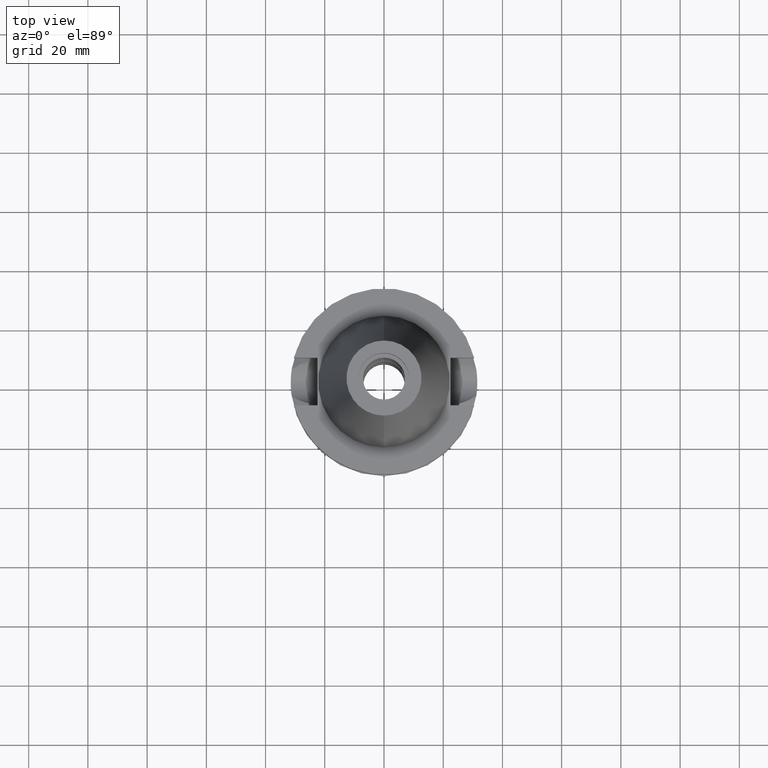
[diagram: clean part render]
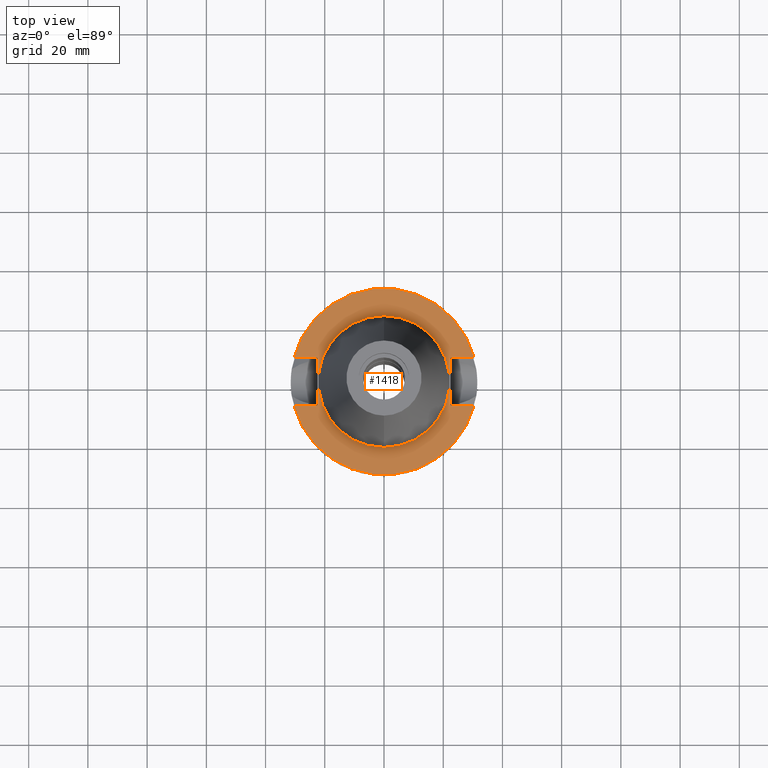
[diagram: same view with one face highlighted and labeled with its STEP entity id]
A machine part, top view. The second image highlights one B-rep face of the part: STEP entity #1418.
In plain terms, the highlighted planar face has unit normal (0, 0, -1).
Its self-contained STEP definition (entity closure, byte-faithful):
#2 = CARTESIAN_POINT ( 'NONE',  ( 22.50000000000000000, 8.050000000000000711, -2.000000000000000000 ) ) ;
#21 = CARTESIAN_POINT ( 'NONE',  ( 30.45402272279000044, -8.050000000000000711, -2.000000000000000000 ) ) ;
#94 = FACE_OUTER_BOUND ( 'NONE', #1733, .T. ) ;
#169 = ORIENTED_EDGE ( 'NONE', *, *, #2507, .T. ) ;
#237 = LINE ( 'NONE', #2195, #3575 ) ;
#284 = CARTESIAN_POINT ( 'NONE',  ( -22.50000000000000000, -8.050000000000000711, -2.000000000000000000 ) ) ;
#336 = VERTEX_POINT ( 'NONE', #1428 ) ;
#361 = EDGE_CURVE ( 'NONE', #673, #1693, #3644, .T. ) ;
#400 = CIRCLE ( 'NONE', #1158, 31.50000000000000000 ) ;
#482 = CARTESIAN_POINT ( 'NONE',  ( -22.50000000000000000, -8.050000000000000711, -2.000000000000000000 ) ) ;
#595 = CARTESIAN_POINT ( 'NONE',  ( -22.50000000000000000, 8.050000000000000711, -2.000000000000000000 ) ) ;
#673 = VERTEX_POINT ( 'NONE', #1345 ) ;
#738 = VECTOR ( 'NONE', #870, 1000.000000000000000 ) ;
#870 = DIRECTION ( 'NONE',  ( 0.0000000000000000000, -1.000000000000000000, 0.0000000000000000000 ) ) ;
#914 = AXIS2_PLACEMENT_3D ( 'NONE', #2957, #2408, #950 ) ;
#922 = DIRECTION ( 'NONE',  ( 0.0000000000000000000, -1.000000000000000000, 0.0000000000000000000 ) ) ;
#950 = DIRECTION ( 'NONE',  ( 0.0000000000000000000, 1.000000000000000000, 0.0000000000000000000 ) ) ;
#1041 = DIRECTION ( 'NONE',  ( 1.000000000000000000, 3.573249715389999860E-14, 0.0000000000000000000 ) ) ;
#1042 = DIRECTION ( 'NONE',  ( -1.000000000000000000, 3.550916904668000126E-14, 0.0000000000000000000 ) ) ;
#1058 = CARTESIAN_POINT ( 'NONE',  ( -22.50000000000000000, -8.050000000000000711, -2.000000000000000000 ) ) ;
#1094 = CARTESIAN_POINT ( 'NONE',  ( 30.45402272279000044, 8.050000000000000711, -2.000000000000000000 ) ) ;
#1123 = DIRECTION ( 'NONE',  ( 1.000000000000000000, -3.506251283225999947E-14, 0.0000000000000000000 ) ) ;
#1143 = CIRCLE ( 'NONE', #2693, 31.50000000000000000 ) ;
#1158 = AXIS2_PLACEMENT_3D ( 'NONE', #2836, #1467, #2336 ) ;
#1236 = CARTESIAN_POINT ( 'NONE',  ( 0.0000000000000000000, 22.22500000000000142, -2.000000000000000000 ) ) ;
#1243 = CARTESIAN_POINT ( 'NONE',  ( 22.50000000000000000, -8.050000000000000711, -2.000000000000000000 ) ) ;
#1308 = ORIENTED_EDGE ( 'NONE', *, *, #3433, .F. ) ;
#1326 = AXIS2_PLACEMENT_3D ( 'NONE', #2922, #3207, #2356 ) ;
#1332 = VECTOR ( 'NONE', #2296, 1000.000000000000000 ) ;
#1341 = CIRCLE ( 'NONE', #3410, 22.22500000000000142 ) ;
#1345 = CARTESIAN_POINT ( 'NONE',  ( 22.50000000000000000, 8.050000000000000711, -2.000000000000000000 ) ) ;
#1357 = EDGE_CURVE ( 'NONE', #3486, #2201, #1143, .T. ) ;
#1374 = DIRECTION ( 'NONE',  ( 0.0000000000000000000, 1.000000000000000000, 0.0000000000000000000 ) ) ;
#1418 = ADVANCED_FACE ( 'NONE', ( #94, #2135 ), #2943, .F. ) ;
#1428 = CARTESIAN_POINT ( 'NONE',  ( 0.0000000000000000000, -22.22500000000000142, -2.000000000000000000 ) ) ;
#1467 = DIRECTION ( 'NONE',  ( 0.0000000000000000000, 0.0000000000000000000, -1.000000000000000000 ) ) ;
#1479 = VERTEX_POINT ( 'NONE', #1236 ) ;
#1569 = ORIENTED_EDGE ( 'NONE', *, *, #1874, .F. ) ;
#1685 = CIRCLE ( 'NONE', #914, 22.22500000000000142 ) ;
#1693 = VERTEX_POINT ( 'NONE', #1243 ) ;
#1728 = ORIENTED_EDGE ( 'NONE', *, *, #1947, .F. ) ;
#1733 = EDGE_LOOP ( 'NONE', ( #2628, #2148, #1728, #2567, #169, #1308, #2369, #1569 ) ) ;
#1763 = CARTESIAN_POINT ( 'NONE',  ( 0.0000000000000000000, 2.161746529854999700E-14, -2.000000000000000000 ) ) ;
#1790 = VERTEX_POINT ( 'NONE', #1094 ) ;
#1874 = EDGE_CURVE ( 'NONE', #2368, #2805, #2438, .T. ) ;
#1947 = EDGE_CURVE ( 'NONE', #1693, #3486, #237, .T. ) ;
#2135 = FACE_BOUND ( 'NONE', #3350, .T. ) ;
#2148 = ORIENTED_EDGE ( 'NONE', *, *, #1357, .F. ) ;
#2195 = CARTESIAN_POINT ( 'NONE',  ( 22.50000000000000000, -8.050000000000000711, -2.000000000000000000 ) ) ;
#2201 = VERTEX_POINT ( 'NONE', #2765 ) ;
#2231 = CARTESIAN_POINT ( 'NONE',  ( 22.50000000000000000, 8.050000000000000711, -2.000000000000000000 ) ) ;
#2263 = ORIENTED_EDGE ( 'NONE', *, *, #3483, .F. ) ;
#2296 = DIRECTION ( 'NONE',  ( -1.000000000000000000, -3.550916904668000126E-14, 0.0000000000000000000 ) ) ;
#2317 = CARTESIAN_POINT ( 'NONE',  ( 0.0000000000000000000, 2.161746529854999700E-14, -2.000000000000000000 ) ) ;
#2329 = EDGE_CURVE ( 'NONE', #2805, #3006, #3570, .T. ) ;
#2336 = DIRECTION ( 'NONE',  ( 0.0000000000000000000, 1.000000000000000000, 0.0000000000000000000 ) ) ;
#2356 = DIRECTION ( 'NONE',  ( 0.0000000000000000000, -1.000000000000000000, 0.0000000000000000000 ) ) ;
#2368 = VERTEX_POINT ( 'NONE', #284 ) ;
#2369 = ORIENTED_EDGE ( 'NONE', *, *, #2329, .F. ) ;
#2408 = DIRECTION ( 'NONE',  ( 0.0000000000000000000, 0.0000000000000000000, 1.000000000000000000 ) ) ;
#2438 = LINE ( 'NONE', #1058, #3516 ) ;
#2499 = CARTESIAN_POINT ( 'NONE',  ( -22.50000000000000000, 8.050000000000000711, -2.000000000000000000 ) ) ;
#2507 = EDGE_CURVE ( 'NONE', #673, #1790, #2545, .T. ) ;
#2531 = EDGE_CURVE ( 'NONE', #1479, #336, #1685, .T. ) ;
#2545 = LINE ( 'NONE', #2, #2928 ) ;
#2567 = ORIENTED_EDGE ( 'NONE', *, *, #361, .F. ) ;
#2628 = ORIENTED_EDGE ( 'NONE', *, *, #3169, .T. ) ;
#2693 = AXIS2_PLACEMENT_3D ( 'NONE', #1763, #2891, #3406 ) ;
#2765 = CARTESIAN_POINT ( 'NONE',  ( -30.45402272279000044, -8.050000000000000711, -2.000000000000000000 ) ) ;
#2805 = VERTEX_POINT ( 'NONE', #2499 ) ;
#2836 = CARTESIAN_POINT ( 'NONE',  ( 0.0000000000000000000, 2.161746529854999700E-14, -2.000000000000000000 ) ) ;
#2891 = DIRECTION ( 'NONE',  ( 0.0000000000000000000, 0.0000000000000000000, -1.000000000000000000 ) ) ;
#2922 = CARTESIAN_POINT ( 'NONE',  ( 0.0000000000000000000, 1.200153863163999924E-14, -2.000000000000000000 ) ) ;
#2928 = VECTOR ( 'NONE', #1123, 1000.000000000000000 ) ;
#2943 = PLANE ( 'NONE',  #1326 ) ;
#2957 = CARTESIAN_POINT ( 'NONE',  ( 0.0000000000000000000, 2.161746529854999700E-14, -2.000000000000000000 ) ) ;
#3006 = VERTEX_POINT ( 'NONE', #3159 ) ;
#3063 = LINE ( 'NONE', #482, #3584 ) ;
#3159 = CARTESIAN_POINT ( 'NONE',  ( -30.45402272279000044, 8.050000000000000711, -2.000000000000000000 ) ) ;
#3169 = EDGE_CURVE ( 'NONE', #2368, #2201, #3063, .T. ) ;
#3172 = DIRECTION ( 'NONE',  ( 0.0000000000000000000, 0.0000000000000000000, 1.000000000000000000 ) ) ;
#3207 = DIRECTION ( 'NONE',  ( 0.0000000000000000000, 0.0000000000000000000, -1.000000000000000000 ) ) ;
#3350 = EDGE_LOOP ( 'NONE', ( #3635, #2263 ) ) ;
#3406 = DIRECTION ( 'NONE',  ( 0.0000000000000000000, -1.000000000000000000, 0.0000000000000000000 ) ) ;
#3410 = AXIS2_PLACEMENT_3D ( 'NONE', #2317, #3172, #922 ) ;
#3433 = EDGE_CURVE ( 'NONE', #3006, #1790, #400, .T. ) ;
#3483 = EDGE_CURVE ( 'NONE', #336, #1479, #1341, .T. ) ;
#3486 = VERTEX_POINT ( 'NONE', #21 ) ;
#3516 = VECTOR ( 'NONE', #1374, 1000.000000000000000 ) ;
#3570 = LINE ( 'NONE', #595, #1332 ) ;
#3575 = VECTOR ( 'NONE', #1041, 1000.000000000000000 ) ;
#3584 = VECTOR ( 'NONE', #1042, 1000.000000000000000 ) ;
#3635 = ORIENTED_EDGE ( 'NONE', *, *, #2531, .F. ) ;
#3644 = LINE ( 'NONE', #2231, #738 ) ;